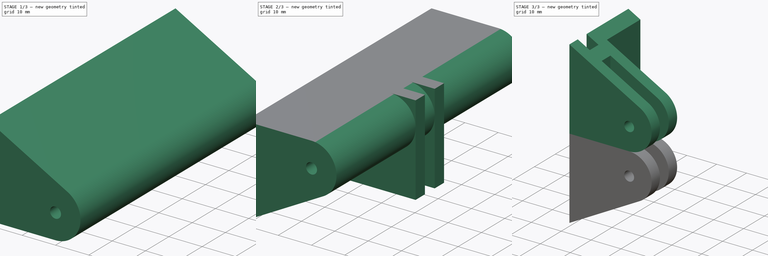
[diagram: build sequence overview — one tinted view per stage of 3, left to right]
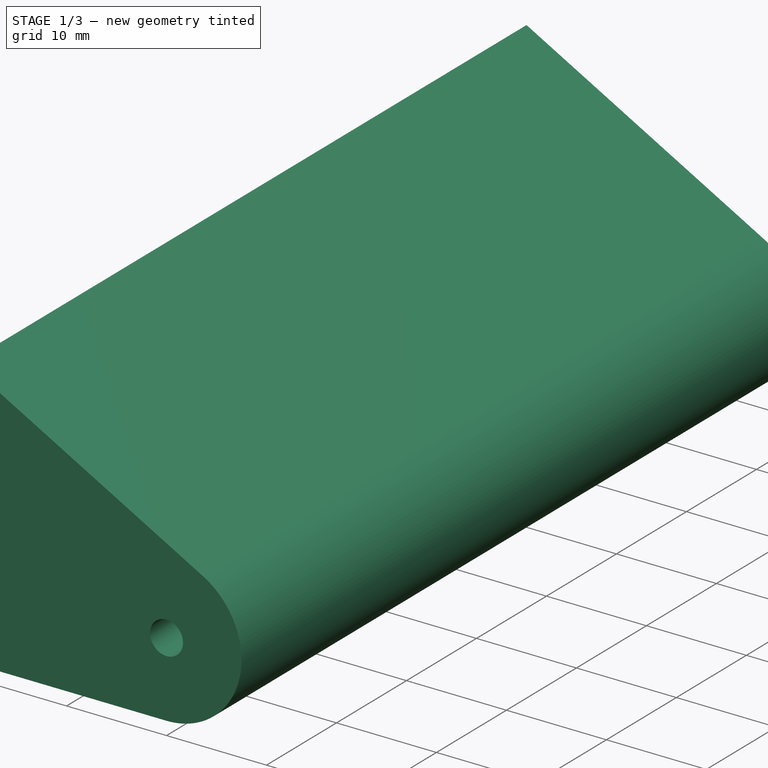
[diagram: stage 1 of 3 — iso view after this stage's code; geometry added in this stage tinted green]
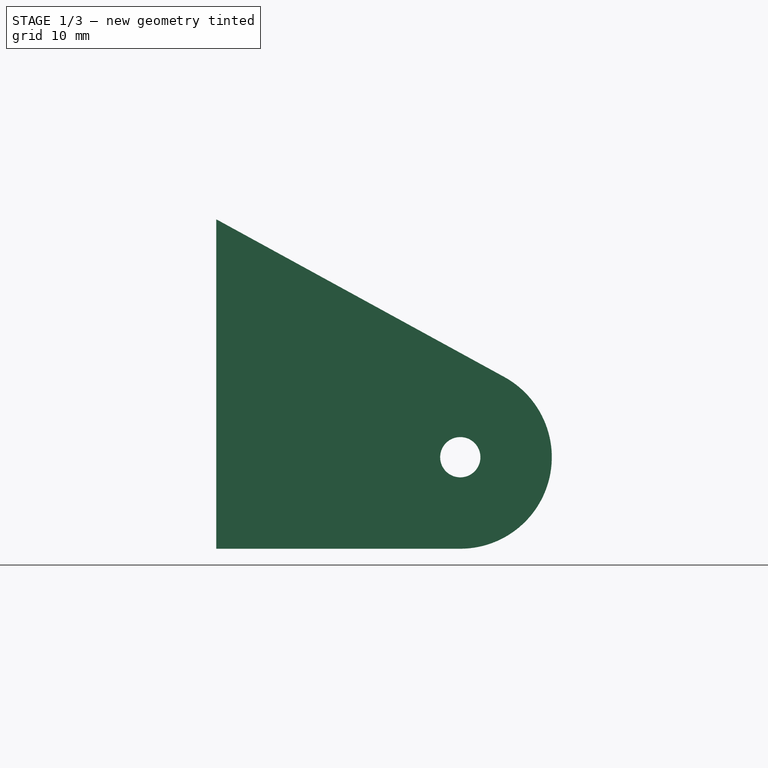
[diagram: stage 1 of 3 — front view after this stage's code; geometry added in this stage tinted green]
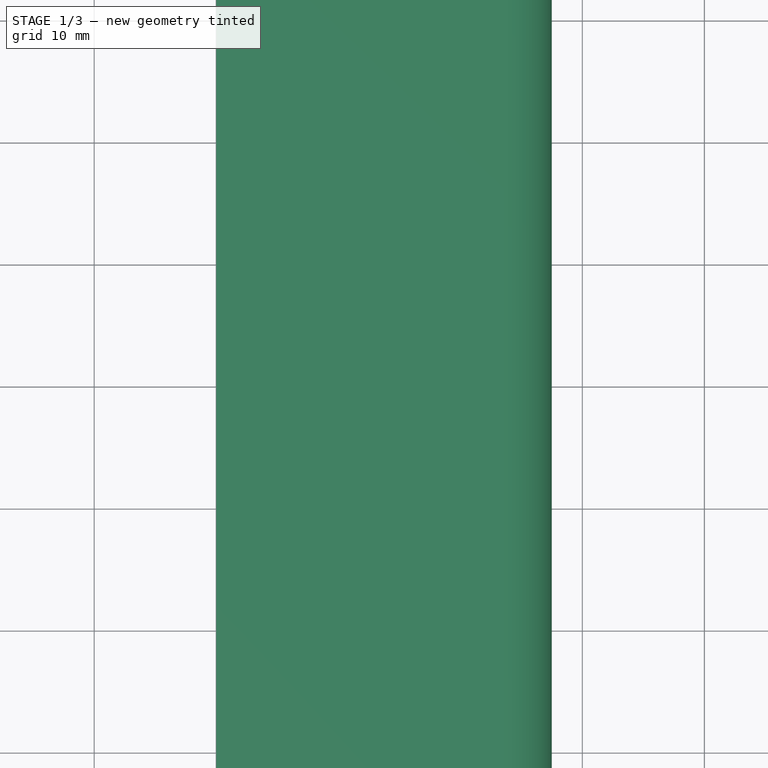
[diagram: stage 1 of 3 — top view after this stage's code; geometry added in this stage tinted green]
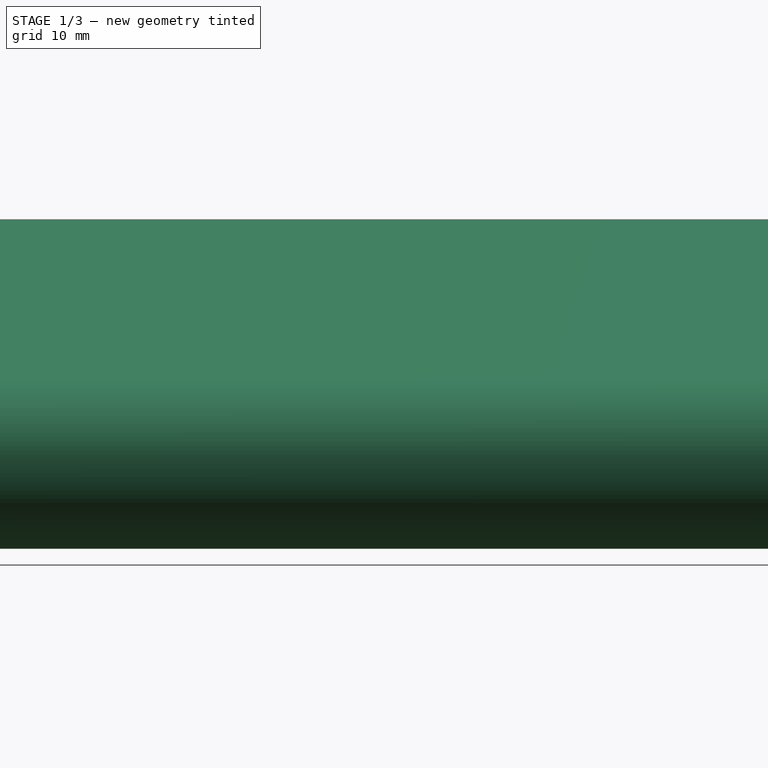
[diagram: stage 1 of 3 — right view after this stage's code; geometry added in this stage tinted green]
FCSTD DOCUMENT  (FreeCAD 0.21R33668 +7 (Git))
Label: 4_Arms_Bracket_L
License: All rights reserved
LicenseURL: http://en.wikipedia.org/wiki/All_rights_reserved
objects: Sketcher::SketchObject×2, Part::MultiCommon×2, Part::Mirroring×2, PartDesign::Pad×1, PartDesign::Body×1, Part::Extrusion×1
note: 10 computed .brp shape members not serialized (recipe doc carries the construction recipe); baked Part::Feature solids carry a one-line shape summary decoded from their .brp

FEATURE [Sketcher::SketchObject] Sketch
  FullyConstrained = true
  MapMode = 5
  Support = -> [XY_Plane]
  sketch-geometry (14):
    g0: LineSegment StartX=0 StartY=22.1 StartZ=0 EndX=4 EndY=22.1 EndZ=0
    g1: LineSegment StartX=4 StartY=22.1 StartZ=0 EndX=4 EndY=6.1 EndZ=0
    g2: LineSegment StartX=4 StartY=6.1 StartZ=0 EndX=27.5 EndY=6.1 EndZ=0
    g3: LineSegment StartX=27.5 StartY=6.1 StartZ=0 EndX=27.5 EndY=2.1 EndZ=0
    g4: LineSegment StartX=27.5 StartY=2.1 StartZ=0 EndX=8 EndY=2.1 EndZ=0
    g5: LineSegment StartX=8 StartY=2.1 StartZ=0 EndX=8 EndY=-2.1 EndZ=0
    g6: LineSegment StartX=8 StartY=-2.1 StartZ=0 EndX=27.5 EndY=-2.1 EndZ=0
    g7: LineSegment StartX=27.5 StartY=-2.1 StartZ=0 EndX=27.5 EndY=-6.1 EndZ=0
    g8: LineSegment StartX=27.5 StartY=-6.1 StartZ=0 EndX=0 EndY=-6.1 EndZ=0
    g9: LineSegment StartX=0 StartY=-6.1 StartZ=0 EndX=0 EndY=-2.1 EndZ=0
    g10: LineSegment StartX=0 StartY=-2.1 StartZ=0 EndX=4 EndY=-2.1 EndZ=0
    g11: LineSegment StartX=4 StartY=-2.1 StartZ=0 EndX=4 EndY=2.1 EndZ=0
    g12: LineSegment StartX=4 StartY=2.1 StartZ=0 EndX=0 EndY=2.1 EndZ=0
    g13: LineSegment StartX=0 StartY=2.1 StartZ=0 EndX=0 EndY=22.1 EndZ=0
  constraints (41):
    c: PointOnObject(g0,g-2)
    c: Horizontal(g0)
    c: Coincident(g0,g1)
    c: Vertical(g1)
    c: Coincident(g1,g2)
    c: Horizontal(g2)
    c: Coincident(g2,g3)
    c: Vertical(g3)
    c: Coincident(g3,g4)
    c: Horizontal(g4)
    c: Coincident(g4,g5)
    c: Vertical(g5)
    c: Coincident(g5,g6)
    c: Horizontal(g6)
    c: Coincident(g6,g7)
    c: Vertical(g7)
    c: Coincident(g7,g8)
    c: PointOnObject(g8,g-2)
    c: Horizontal(g8)
    c: Coincident(g8,g9)
    c: PointOnObject(g9,g-2)
    c: Coincident(g9,g10)
    c: Coincident(g10,g11)
    c: Coincident(g11,g12)
    c: PointOnObject(g12,g-2)
    c: Coincident(g12,g13)
    c: Coincident(g13,g0)
    c: Vertical(g11)
    c: Horizontal(g12)
    c: Horizontal(g10)
    c: Equal(g3,g7)
    c: DistanceY(g3,g3) = 4
    c: DistanceY(g5,g5) = 4.2
    c: Horizontal(g10,g5)
    c: DistanceY(g13,g13) = 20
    c: Horizontal(g11,g4)
    c: Symmetric(g3,g6,g-1)
    c: DistanceX(g0,g0) = 4
    c: DistanceX(g12,g12) = 4
    c: DistanceX(g10,g5) = 4
    c: DistanceX(g12,g2) = 27.5
FEATURE [PartDesign::Pad] Pad
  Direction = (0,0,1)
  Length = 27
  Length2 = 10
  Profile = -> Sketch
  ReferenceAxis = -> Sketch [N_Axis]
  Type = 0
FEATURE [Sketcher::SketchObject] Sketch001
  ExternalGeometry = -> [Pad]
  FullyConstrained = true
  MapMode = 5
  Placement = pos=(0,0,0) rot=(1,0,0;1.5708rad)
  Support = -> [XZ_Plane]
  sketch-geometry (5):
    g0: Circle CenterX=20 CenterY=7.5 CenterZ=0 NormalX=0 NormalY=0 NormalZ=1 AngleXU=0 Radius=1.65
    g1: ArcOfCircle CenterX=20 CenterY=7.5 CenterZ=0 NormalX=0 NormalY=0 NormalZ=1 AngleXU=0 Radius=7.5 StartAngle=4.71239 EndAngle=7.35308
    g2: LineSegment StartX=0 StartY=-4.9e-15 StartZ=0 EndX=20 EndY=-9e-16 EndZ=0
    g3: LineSegment StartX=0 StartY=-4.9e-15 StartZ=0 EndX=0 EndY=27 EndZ=0
    g4: LineSegment StartX=0 StartY=27 StartZ=0 EndX=23.6016 EndY=14.0786 EndZ=0
  constraints (11):
    c: Coincident(g1,g0)
    c: Diameter(g0) = 3.3
    c: Radius(g1) = 7.5
    c: PointOnObject(g2,g-4)
    c: Coincident(g3,g2)
    c: Coincident(g3,g-3)
    c: Coincident(g4,g3)
    c: Tangent(g4,g1) = 1.5708
    c: Tangent(g1,g2) = -1.5708
    c: DistanceX(g2,g0) = 20
    c: Coincident(g2,g-3)
FEATURE [PartDesign::Body] Body
  Group = -> [Sketch,Pad,Sketch001]
  Origin = -> Origin
  Tip = -> Pad
FEATURE [Part::Extrusion] Extrude
  Base = -> Sketch001
  Dir = (0,-1,-2e-16)
  DirMode = 2
  FaceMakerClass = Part::FaceMakerBullseye
  LengthFwd = 80
  LengthRev = 0
  Solid = true
  Symmetric = true
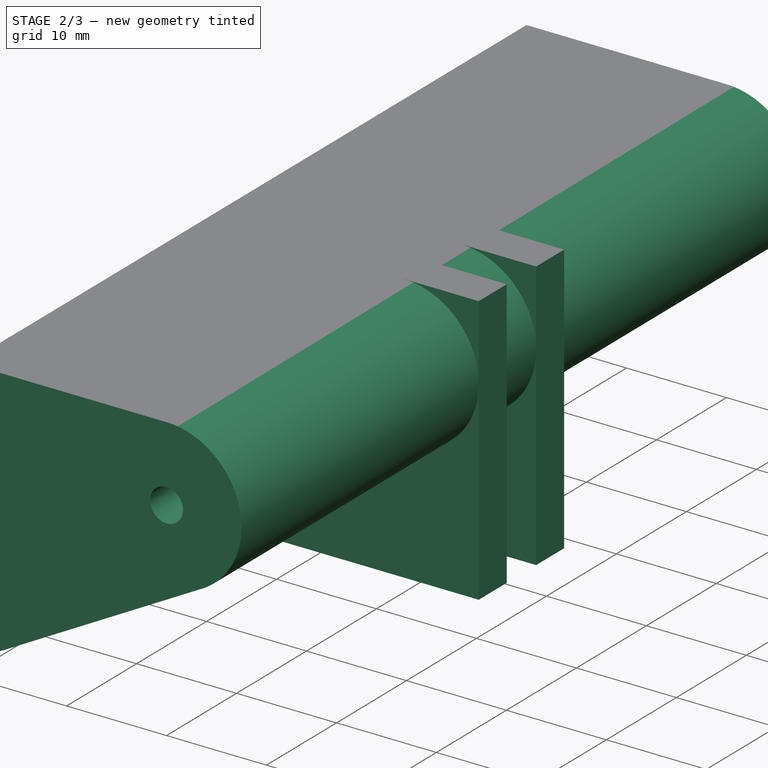
[diagram: stage 2 of 3 — iso view after this stage's code; geometry added in this stage tinted green]
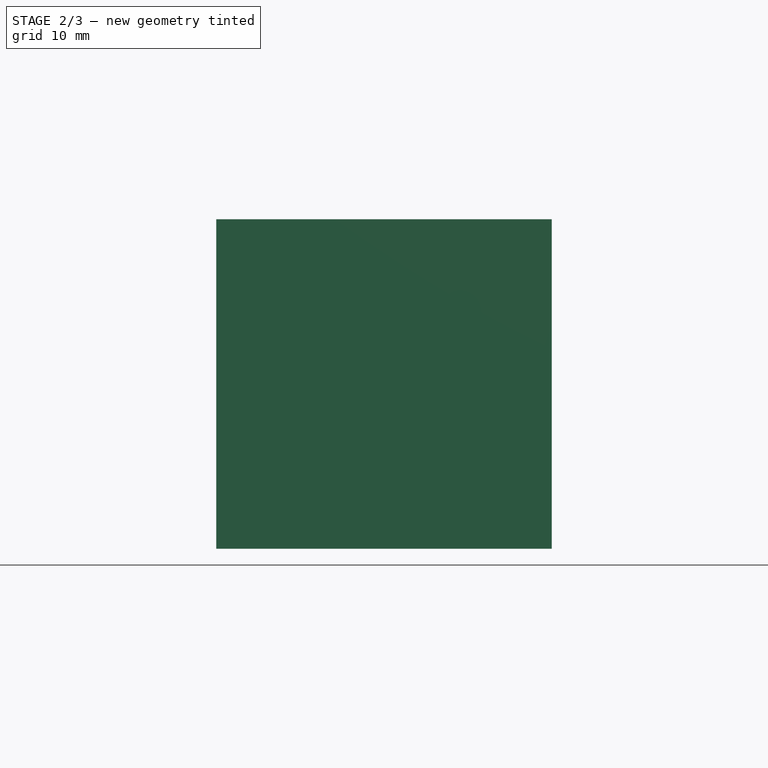
[diagram: stage 2 of 3 — front view after this stage's code; geometry added in this stage tinted green]
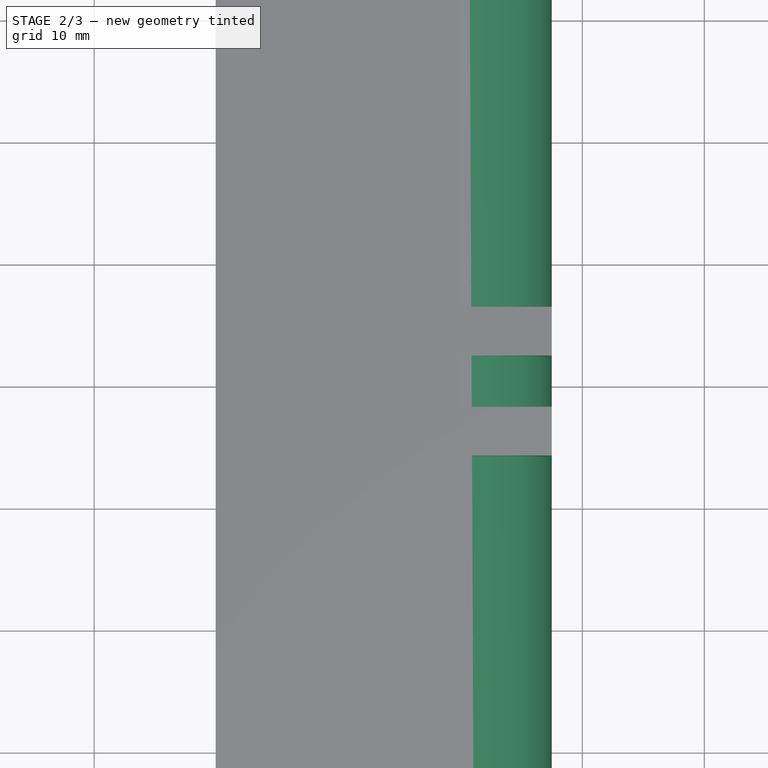
[diagram: stage 2 of 3 — top view after this stage's code; geometry added in this stage tinted green]
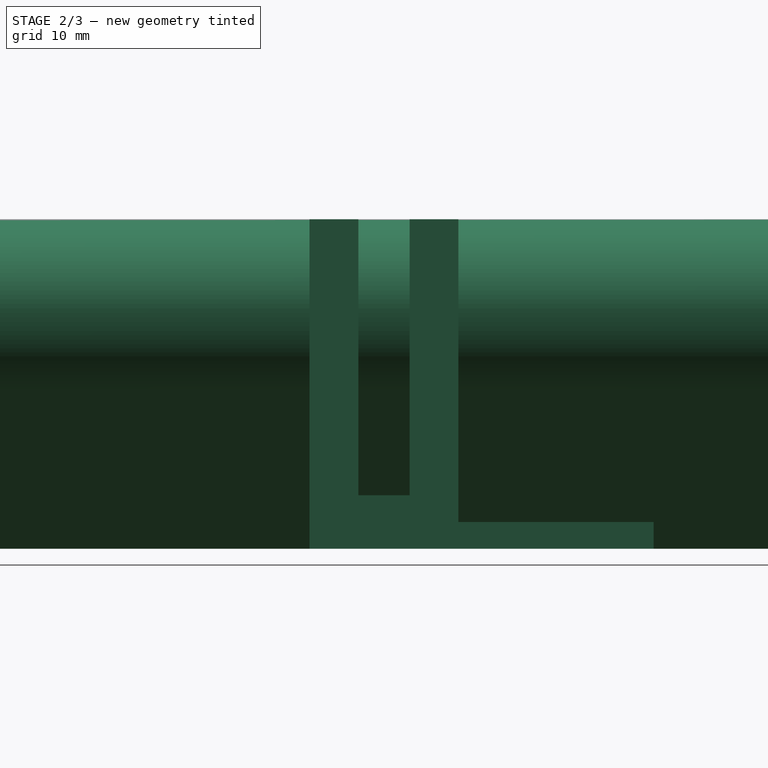
[diagram: stage 2 of 3 — right view after this stage's code; geometry added in this stage tinted green]
FEATURE [Part::Mirroring] Part__Mirroring  label="Body (Mirror #1)"
  Base = (0,0,0)
  Normal = (0,0,1)
  Source = -> Body
FEATURE [Part::Mirroring] Part__Mirroring001  label="Extrude (Mirror #2)"
  Base = (0,0,0)
  Normal = (0,0,1)
  Source = -> Extrude
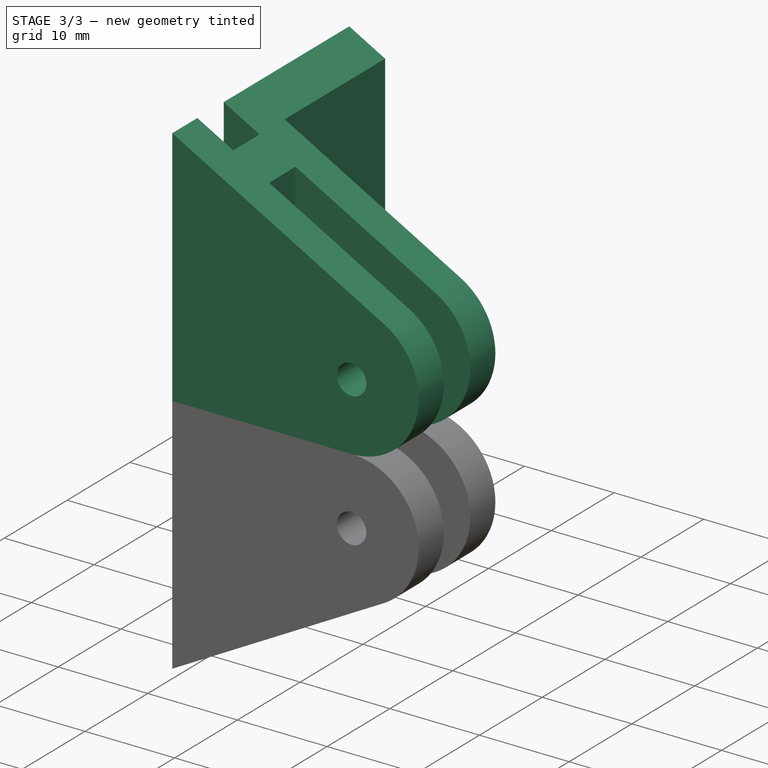
[diagram: stage 3 of 3 — iso view after this stage's code; geometry added in this stage tinted green]
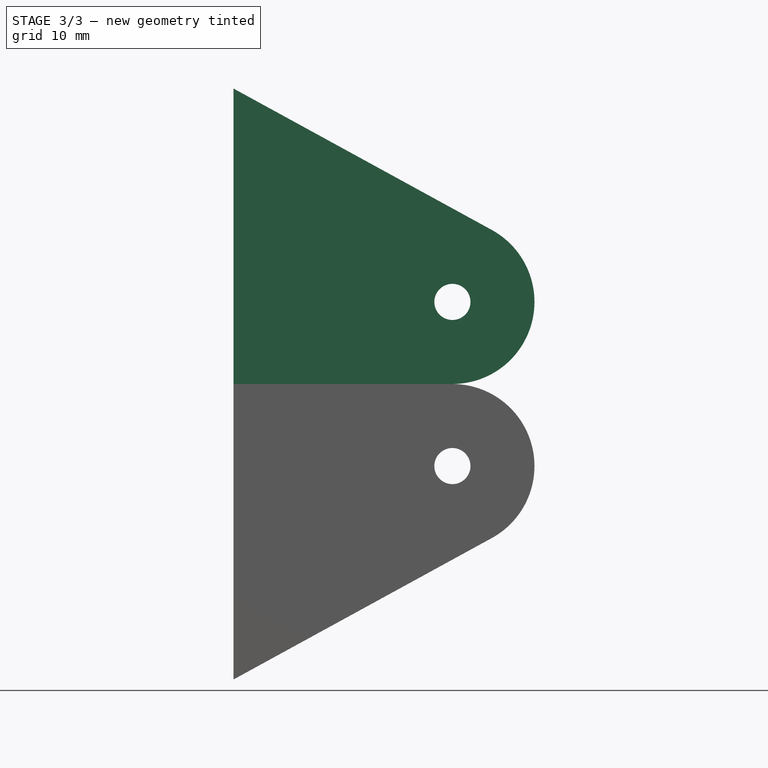
[diagram: stage 3 of 3 — front view after this stage's code; geometry added in this stage tinted green]
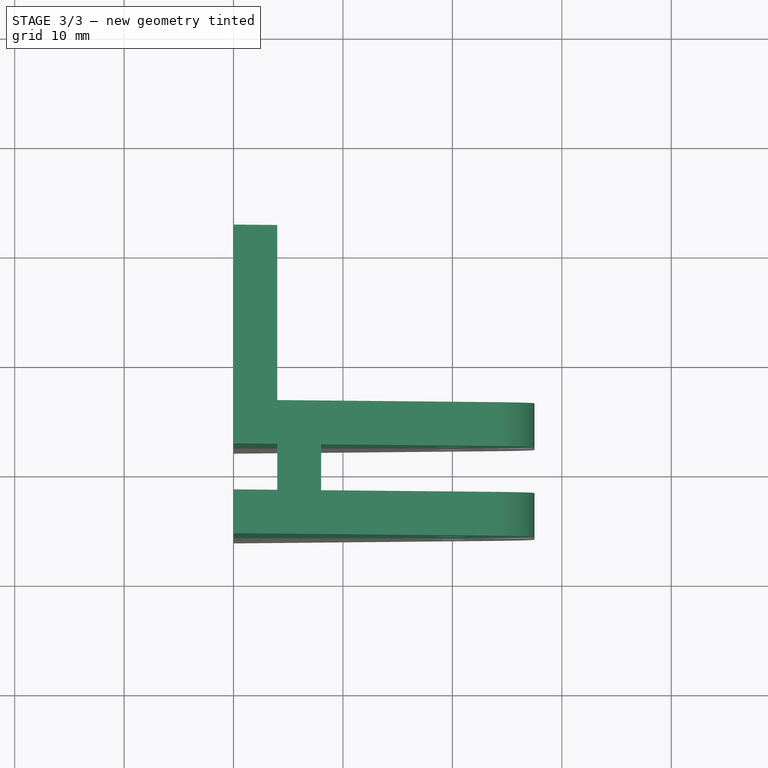
[diagram: stage 3 of 3 — top view after this stage's code; geometry added in this stage tinted green]
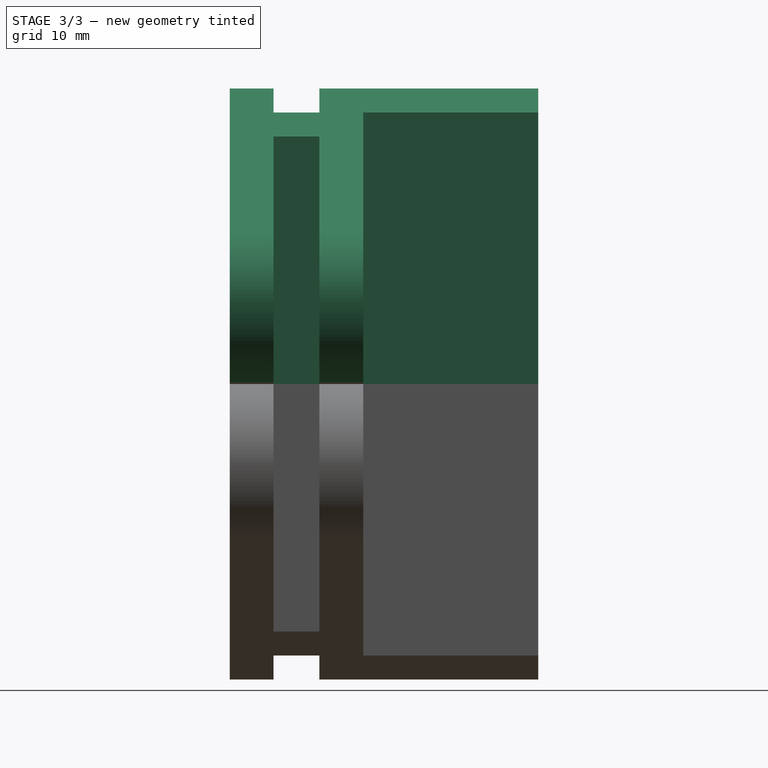
[diagram: stage 3 of 3 — right view after this stage's code; geometry added in this stage tinted green]
FEATURE [Part::MultiCommon] Common
  Shapes = -> [Body,Extrude]
FEATURE [Part::MultiCommon] Common001
  Shapes = -> [Part__Mirroring001,Part__Mirroring]
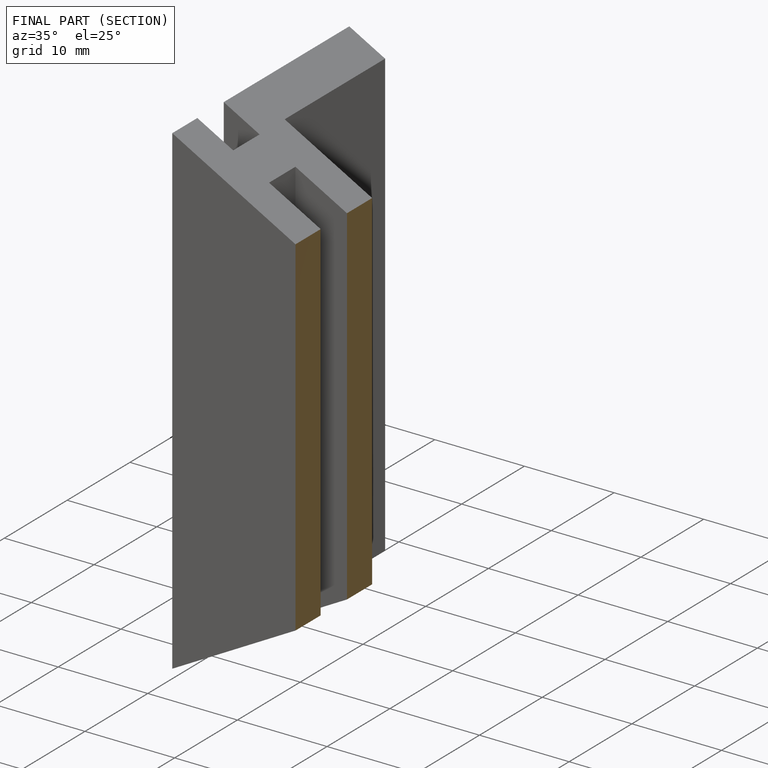
[diagram: finished part — half-section view (interior)]
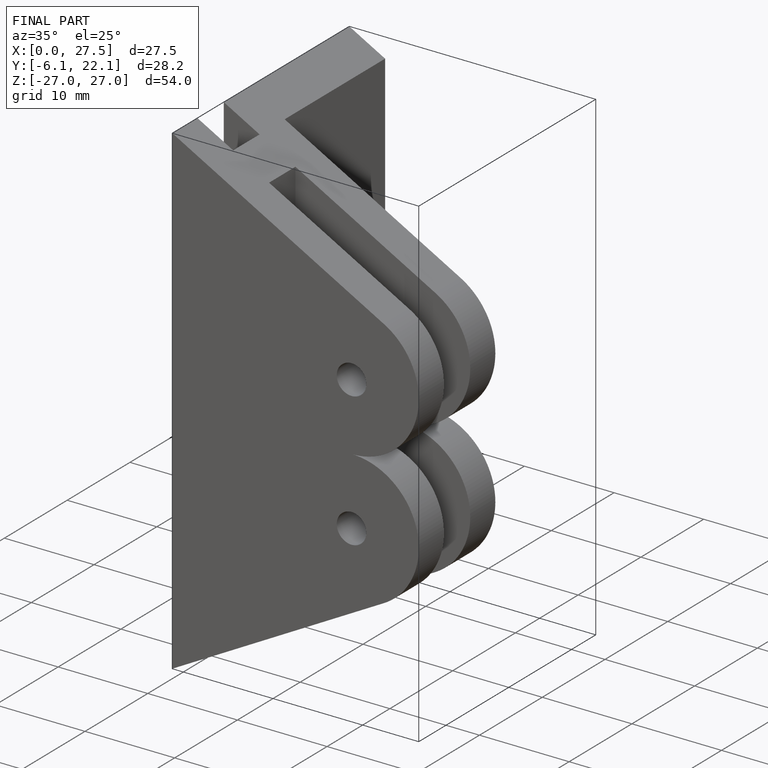
[diagram: finished part — iso view with bounding-box wireframe]
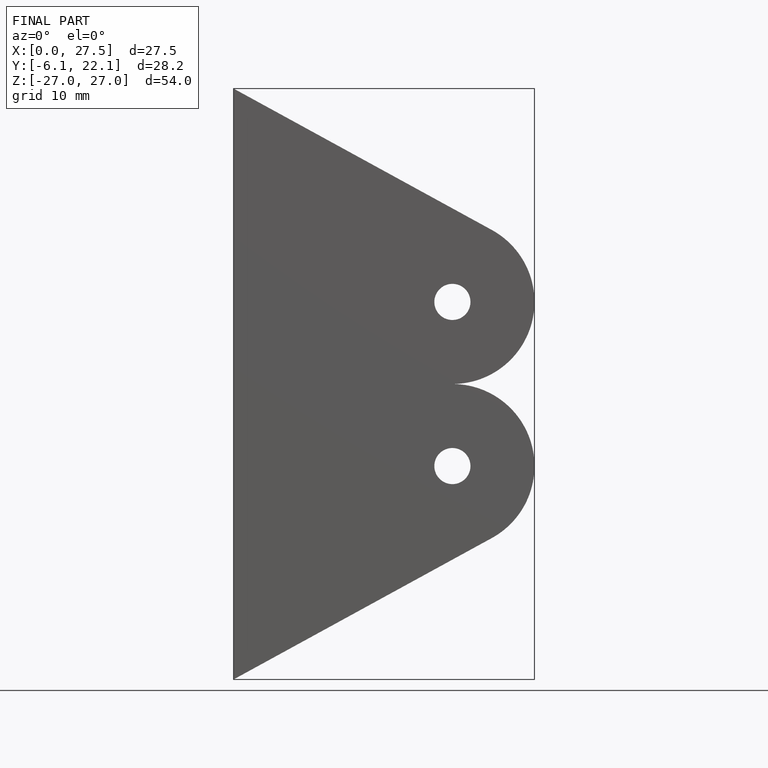
[diagram: finished part — front view with bounding-box wireframe]
